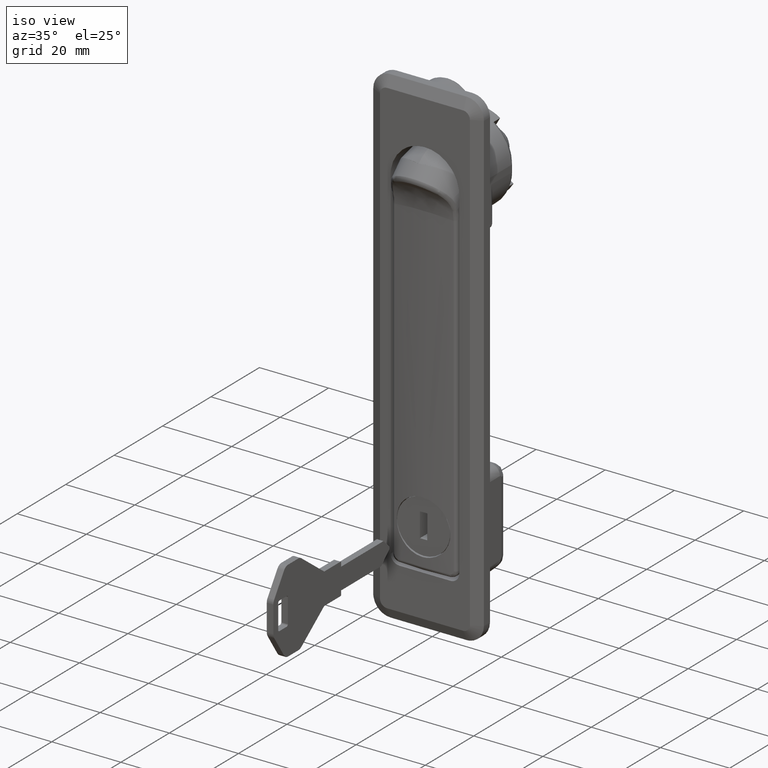
[diagram: clean part render]
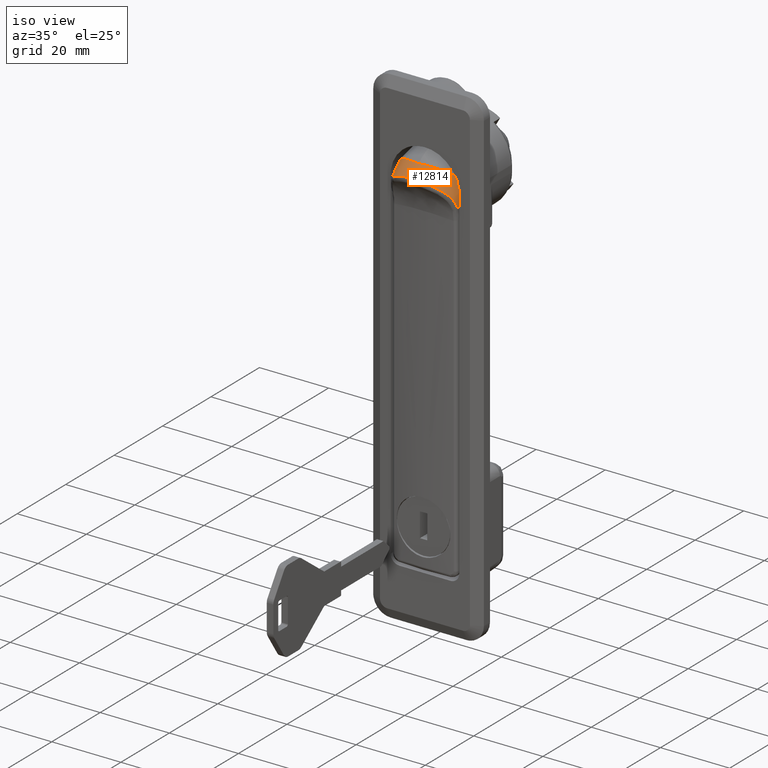
[diagram: same view with one face highlighted and labeled with its STEP entity id]
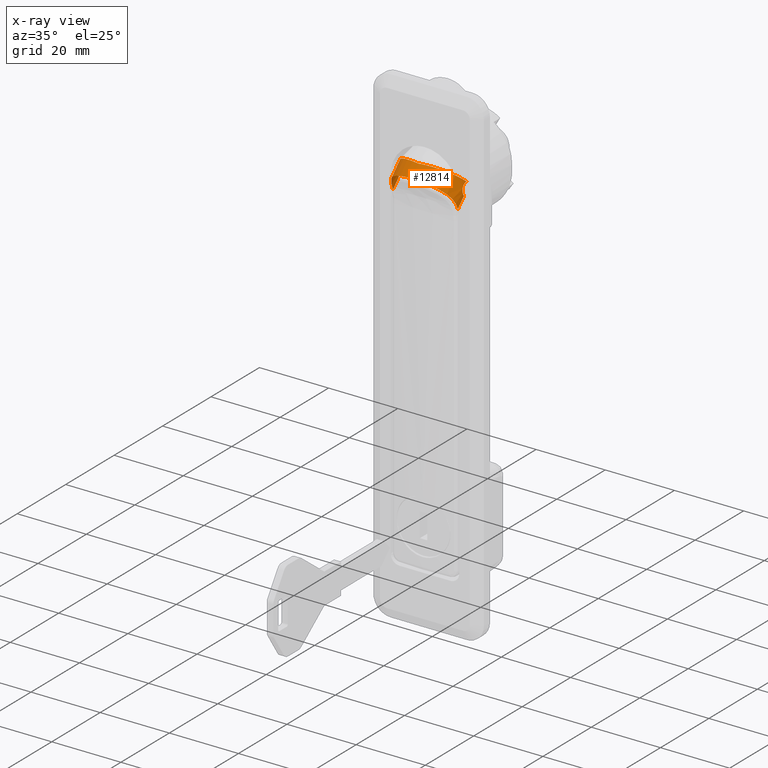
[diagram: x-ray of the same camera — body ghosted, the highlighted face saturated]
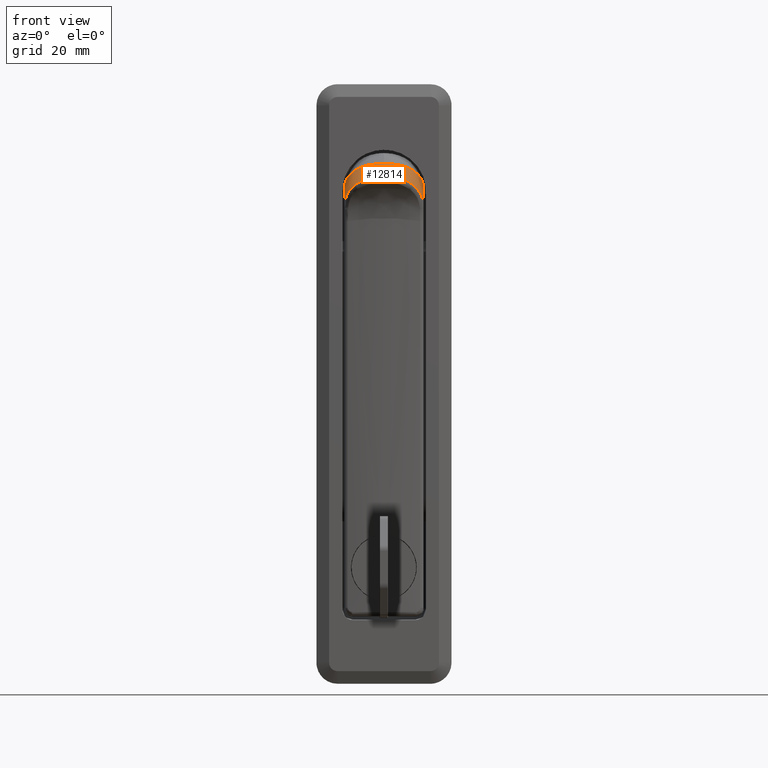
[diagram: same view with one face highlighted and labeled with its STEP entity id]
A machine part, iso view. The second image highlights one B-rep face of the part: STEP entity #12814.
The next image is the same camera in x-ray: the body ghosted, the highlighted face saturated — about 0% of this face is hidden behind the body in this view.
A second angle (front view) of the same face is appended — the face is thin or edge-on in the first view.
In plain terms, the highlighted face is a freeform B-spline surface patch.
Its self-contained STEP definition (entity closure, byte-faithful):
#9063=CARTESIAN_POINT('',(-0.664905069877614,-9.376354503641515,-0.722591661708921));
#9064=VERTEX_POINT('',#9063);
#9065=CARTESIAN_POINT('',(-0.310673836605661,-9.400000000000000,-1.310673322912942));
#9066=VERTEX_POINT('',#9065);
#9067=CARTESIAN_POINT('',(-0.664905069877614,-9.376354503641515,-0.722591661708921));
#9068=CARTESIAN_POINT('',(-0.645942124942898,-9.379766852793425,-0.771536736301744));
#9069=CARTESIAN_POINT('',(-0.625122447375428,-9.382854544176338,-0.819542302223441));
#9070=CARTESIAN_POINT('',(-0.564233427103774,-9.390206037574412,-0.946185221120532));
#9071=CARTESIAN_POINT('',(-0.520789075415055,-9.393813593031632,-1.023118283588885));
#9072=CARTESIAN_POINT('',(-0.423307784756180,-9.398718290300213,-1.171648583926567));
#9073=CARTESIAN_POINT('',(-0.368887381810407,-9.400000010189537,-1.243576316004407));
#9074=CARTESIAN_POINT('',(-0.310673836605661,-9.400000000000000,-1.310673322912942));
#9075=B_SPLINE_CURVE_WITH_KNOTS('',3,(#9067,#9068,#9069,#9070,#9071,#9072,#9073,#9074),.UNSPECIFIED.,.F.,.U.,(4,2,2,4),(0.838008100910213,0.875000000000000,0.937500000000000,1.0),.UNSPECIFIED.);
#9076=EDGE_CURVE('',#9064,#9066,#9075,.T.);
#9156=CARTESIAN_POINT('',(0.885372308754790,-9.283131247923251,1.975097318083755));
#9157=VERTEX_POINT('',#9156);
#9167=CARTESIAN_POINT('',(-0.655387709571665,-9.245271919890524,0.746681126997140));
#9168=VERTEX_POINT('',#9167);
#9169=CARTESIAN_POINT('',(0.885372308754790,-9.283131247923251,1.975097318083755));
#9170=CARTESIAN_POINT('',(0.841564389423130,-9.278985931843092,1.968118844982116));
#9171=CARTESIAN_POINT('',(0.797637018120516,-9.274885825124972,1.959612951914272));
#9172=CARTESIAN_POINT('',(0.710907144871185,-9.266964381062168,1.939785341946444));
#9173=CARTESIAN_POINT('',(0.668074696739454,-9.263139635524508,1.928472702586916));
#9174=CARTESIAN_POINT('',(0.541135724457526,-9.252147641737210,1.890424098664822));
#9175=CARTESIAN_POINT('',(0.458580601650463,-9.245462711804704,1.859595388735296));
#9176=CARTESIAN_POINT('',(0.337829929235144,-9.236687368748234,1.805162833194881));
#9177=CARTESIAN_POINT('',(0.298095125516258,-9.233970858317521,1.785649234877498));
#9178=CARTESIAN_POINT('',(0.219673971840217,-9.229003426647733,1.743828155681627));
#9179=CARTESIAN_POINT('',(0.180848383952481,-9.226745534631219,1.721431557366052));
#9180=CARTESIAN_POINT('',(0.067083286607653,-9.220800046179924,1.650600831716639));
#9181=CARTESIAN_POINT('',(-0.076790277342537,-9.215099617850626,1.546985867057820));
#9182=CARTESIAN_POINT('',(-0.205544090569972,-9.214040288314759,1.425610099263944));
#9183=CARTESIAN_POINT('',(-0.296322645592610,-9.215045287294867,1.327780110911370));
#9184=CARTESIAN_POINT('',(-0.325705721338044,-9.215683436042937,1.293918772510535));
#9185=CARTESIAN_POINT('',(-0.382034232152910,-9.217552347247429,1.224406638192212));
#9186=CARTESIAN_POINT('',(-0.408880084577593,-9.218777246734359,1.188896461019365));
#9187=CARTESIAN_POINT('',(-0.485563892118790,-9.223274078827021,1.080160122992520));
#9188=CARTESIAN_POINT('',(-0.531564639293947,-9.227368395557017,1.004737836365440));
#9189=CARTESIAN_POINT('',(-0.592971607546995,-9.234958344150485,0.887248019225841));
#9190=CARTESIAN_POINT('',(-0.612170723166521,-9.237729709918867,0.847356236964131));
#9191=CARTESIAN_POINT('',(-0.638819986897969,-9.242187033688001,0.786901538329378));
#9192=CARTESIAN_POINT('',(-0.647263526218860,-9.243704793548824,0.766868609624563));
#9193=CARTESIAN_POINT('',(-0.655387709571665,-9.245271919890524,0.746681126997140));
#9194=B_SPLINE_CURVE_WITH_KNOTS('',3,(#9169,#9170,#9171,#9172,#9173,#9174,#9175,#9176,#9177,#9178,#9179,#9180,#9181,#9182,#9183,#9184,#9185,#9186,#9187,#9188,#9189,#9190,#9191,#9192,#9193),.UNSPECIFIED.,.F.,.U.,(4,2,2,2,2,2,1,2,2,2,2,2,4),(0.0,0.031250000000000,0.062500000000000,0.125000000000001,0.156250000000001,0.187500000000001,0.250000000000001,0.312500000000001,0.343750000000001,0.375000000000001,0.437500000000001,0.468750000000001,0.483995765298623),.UNSPECIFIED.);
#9195=EDGE_CURVE('',#9157,#9168,#9194,.T.);
#9273=CARTESIAN_POINT('',(-0.655387709571665,-9.245271919890524,0.746681126997140));
#9274=CARTESIAN_POINT('',(-0.663916013995715,-9.246916989756064,0.725489329577043));
#9275=CARTESIAN_POINT('',(-0.672092396145685,-9.248616460184740,0.704127217836031));
#9276=CARTESIAN_POINT('',(-0.740777392223804,-9.263998950619948,0.514983221617568));
#9277=CARTESIAN_POINT('',(-0.778341870258879,-9.280280711310235,0.342882017094426));
#9278=CARTESIAN_POINT('',(-0.796758494948594,-9.301600680528365,0.122133338337976));
#9279=CARTESIAN_POINT('',(-0.798991144961187,-9.305927512079455,0.077548391654814));
#9280=CARTESIAN_POINT('',(-0.800461691947925,-9.314544336584925,-0.011467697026337));
#9281=CARTESIAN_POINT('',(-0.799709099083838,-9.318821941358928,-0.055772895299309));
#9282=CARTESIAN_POINT('',(-0.793091794748529,-9.331472180988568,-0.188102484320425));
#9283=CARTESIAN_POINT('',(-0.782886757668875,-9.339662326264994,-0.275543515134647));
#9284=CARTESIAN_POINT('',(-0.758939501997835,-9.351231981116303,-0.405575690714153));
#9285=CARTESIAN_POINT('',(-0.749512296594174,-9.354969324853622,-0.448730847567124));
#9286=CARTESIAN_POINT('',(-0.727717213512792,-9.362145881947003,-0.534661693492656));
#9287=CARTESIAN_POINT('',(-0.715314547847980,-9.365593132584223,-0.577542589968527));
#9288=CARTESIAN_POINT('',(-0.690174726777859,-9.371494126895856,-0.654644001566052));
#9289=CARTESIAN_POINT('',(-0.677981328487898,-9.374001501187280,-0.688841195923841));
#9290=CARTESIAN_POINT('',(-0.664905069877614,-9.376354503641515,-0.722591661708921));
#9291=B_SPLINE_CURVE_WITH_KNOTS('',3,(#9273,#9274,#9275,#9276,#9277,#9278,#9279,#9280,#9281,#9282,#9283,#9284,#9285,#9286,#9287,#9288,#9289,#9290),.UNSPECIFIED.,.F.,.U.,(4,2,2,2,2,2,2,2,4),(0.483995765298623,0.500000000000001,0.625000000000001,0.656250000000001,0.687500000000001,0.750000000000001,0.781250000000001,0.812500000000001,0.838008100910213),.UNSPECIFIED.);
#9292=EDGE_CURVE('',#9168,#9064,#9291,.T.);
#9328=CARTESIAN_POINT('',(-0.794456649193368,9.327738834868322,-0.149306174356812));
#9329=VERTEX_POINT('',#9328);
#9330=CARTESIAN_POINT('',(0.130742841321800,9.224134473947665,1.690174412107750));
#9331=VERTEX_POINT('',#9330);
#9332=CARTESIAN_POINT('',(-0.794456649193368,9.327738834868322,-0.149306174356812));
#9333=CARTESIAN_POINT('',(-0.802306057155994,9.317831752670825,-0.044789211058439));
#9334=CARTESIAN_POINT('',(-0.801863845779877,9.307574587239660,0.060235566489128));
#9335=CARTESIAN_POINT('',(-0.789393946155394,9.293094361117131,0.210162093402089));
#9336=CARTESIAN_POINT('',(-0.784200012647902,9.288828525128633,0.254547960851179));
#9337=CARTESIAN_POINT('',(-0.770974058246647,9.280506317139061,0.342217369030025));
#9338=CARTESIAN_POINT('',(-0.762930946850184,9.276434211551353,0.385662914353723));
#9339=CARTESIAN_POINT('',(-0.734579411499586,9.264568206251081,0.514858234116870));
#9340=CARTESIAN_POINT('',(-0.710067567185917,9.257124408883556,0.599471886167315));
#9341=CARTESIAN_POINT('',(-0.664809873028485,9.246986359231274,0.724125488354307));
#9342=CARTESIAN_POINT('',(-0.648304328213650,9.243778274150420,0.765297582706353));
#9343=CARTESIAN_POINT('',(-0.612382486748644,9.237760684659072,0.846868593903511));
#9344=CARTESIAN_POINT('',(-0.592934018836503,9.234950860252177,0.887299949953335));
#9345=CARTESIAN_POINT('',(-0.531092375269293,9.227313645952780,1.005575138803586));
#9346=CARTESIAN_POINT('',(-0.438829296778373,9.219146117298026,1.156517630803619));
#9347=CARTESIAN_POINT('',(-0.327367660942839,9.215395926363250,1.294251310383463));
#9348=CARTESIAN_POINT('',(-0.236340639182964,9.214375541556816,1.392442545838222));
#9349=CARTESIAN_POINT('',(-0.204670638129108,9.214336899870432,1.424384361293712));
#9350=CARTESIAN_POINT('',(-0.139779590855932,9.214863239589889,1.485586005626125));
#9351=CARTESIAN_POINT('',(-0.106459691274055,9.215425569116475,1.514963144620467));
#9352=CARTESIAN_POINT('',(-0.007660340479999,9.217886484252588,1.596422706198648));
#9353=CARTESIAN_POINT('',(0.060015321927438,9.220529588487095,1.645431910311359));
#9354=CARTESIAN_POINT('',(0.130742841321800,9.224134473947665,1.690174412107750));
#9355=B_SPLINE_CURVE_WITH_KNOTS('',3,(#9332,#9333,#9334,#9335,#9336,#9337,#9338,#9339,#9340,#9341,#9342,#9343,#9344,#9345,#9346,#9347,#9348,#9349,#9350,#9351,#9352,#9353,#9354),.UNSPECIFIED.,.F.,.U.,(4,2,2,2,2,2,2,1,2,2,2,4),(0.300614133556624,0.375000000000000,0.406250000000000,0.437500000000000,0.500000000000000,0.531250000000000,0.562500000000000,0.625000000000000,0.687500000000000,0.718750000000000,0.750000000000000,0.809089019606305),.UNSPECIFIED.);
#9356=EDGE_CURVE('',#9329,#9331,#9355,.T.);
#9416=CARTESIAN_POINT('',(0.885372308754777,9.283131247923251,1.975097318083775));
#9417=VERTEX_POINT('',#9416);
#9418=CARTESIAN_POINT('',(0.130742841321800,9.224134473947665,1.690174412107750));
#9419=CARTESIAN_POINT('',(0.134825686465715,9.224342560809951,1.692757316097243));
#9420=CARTESIAN_POINT('',(0.138918756602343,9.224553852638966,1.695325914492086));
#9421=CARTESIAN_POINT('',(0.180614189496336,9.226733340778749,1.721282488425721));
#9422=CARTESIAN_POINT('',(0.219062752033560,9.228966109209837,1.743487512674822));
#9423=CARTESIAN_POINT('',(0.297707373565801,9.233944334204308,1.785456414361185));
#9424=CARTESIAN_POINT('',(0.337993762258713,9.236697637154771,1.805249447612602));
#9425=CARTESIAN_POINT('',(0.540864789791281,9.251447998709301,1.896635422750524));
#9426=CARTESIAN_POINT('',(0.709761932590478,9.266514074322892,1.947123057420558));
#9427=CARTESIAN_POINT('',(0.885372308754778,9.283131247923244,1.975097318083775));
#9428=B_SPLINE_CURVE_WITH_KNOTS('',3,(#9418,#9419,#9420,#9421,#9422,#9423,#9424,#9425,#9426,#9427),.UNSPECIFIED.,.F.,.U.,(4,2,2,2,4),(0.809089019606305,0.812500000000000,0.843750000000000,0.875000000000000,1.0),.UNSPECIFIED.);
#9429=EDGE_CURVE('',#9331,#9417,#9428,.T.);
#9508=CARTESIAN_POINT('',(-0.310673836605494,9.400000000000000,-1.310673322912820));
#9509=VERTEX_POINT('',#9508);
#9523=CARTESIAN_POINT('',(-0.310673836605494,9.400000000000000,-1.310673322912820));
#9524=CARTESIAN_POINT('',(-0.368609926649023,9.399999693594747,-1.243893530571919));
#9525=CARTESIAN_POINT('',(-0.422192902885963,9.398758471941148,-1.173226440421236));
#9526=CARTESIAN_POINT('',(-0.495822371365832,9.395075587801694,-1.061202992342802));
#9527=CARTESIAN_POINT('',(-0.519206429539426,9.393542557522949,-1.022875229836433));
#9528=CARTESIAN_POINT('',(-0.563006145073713,9.389945390651000,-0.945380063437708));
#9529=CARTESIAN_POINT('',(-0.583519432913137,9.387877094924113,-0.906069666305517));
#9530=CARTESIAN_POINT('',(-0.640979627621096,9.380929924792694,-0.786479192343689));
#9531=CARTESIAN_POINT('',(-0.673864705862928,9.375308813940620,-0.704547296634957));
#9532=CARTESIAN_POINT('',(-0.715047822267933,9.365650543039184,-0.578320349192362));
#9533=CARTESIAN_POINT('',(-0.727413666395379,9.362226618518056,-0.535687993558233));
#9534=CARTESIAN_POINT('',(-0.749363695471502,9.355013379777514,-0.449282789425717));
#9535=CARTESIAN_POINT('',(-0.758914618554669,9.351229757150932,-0.405589110651416));
#9536=CARTESIAN_POINT('',(-0.779942147290471,9.341059612536526,-0.291303743704506));
#9537=CARTESIAN_POINT('',(-0.789118826609629,9.334480264456563,-0.220422513078259));
#9538=CARTESIAN_POINT('',(-0.794456649193368,9.327738834868322,-0.149306174356812));
#9539=B_SPLINE_CURVE_WITH_KNOTS('',3,(#9523,#9524,#9525,#9526,#9527,#9528,#9529,#9530,#9531,#9532,#9533,#9534,#9535,#9536,#9537,#9538),.UNSPECIFIED.,.F.,.U.,(4,2,2,2,2,2,2,4),(0.0,0.062500000000000,0.093750000000000,0.125000000000000,0.187500000000000,0.218750000000000,0.250000000000000,0.300614133556624),.UNSPECIFIED.);
#9540=EDGE_CURVE('',#9509,#9329,#9539,.T.);
#9625=CARTESIAN_POINT('',(-5.646803837727238,0.0,6.646803905426230));
#9626=VERTEX_POINT('',#9625);
#11116=CARTESIAN_POINT('',(-2.834066197106915,-9.400000000000000,-3.834065683414365));
#11117=VERTEX_POINT('',#11116);
#11429=CARTESIAN_POINT('',(-6.453373264388840,-6.751277101391210,1.796519951409085));
#11430=VERTEX_POINT('',#11429);
#11474=CARTESIAN_POINT('',(-6.453373264388840,-6.751277101391210,1.796519951409085));
#11475=CARTESIAN_POINT('',(-6.294752844659851,-6.968602092544161,1.637899667146557));
#11476=CARTESIAN_POINT('',(-6.132381861764475,-7.173493951356687,1.469617091237436));
#11477=CARTESIAN_POINT('',(-5.802285308047341,-7.558859115312590,1.112240197070407));
#11478=CARTESIAN_POINT('',(-5.634553478591784,-7.739331750547850,0.923150881758858));
#11479=CARTESIAN_POINT('',(-5.380520498428670,-7.991537153649437,0.622266437442440));
#11480=CARTESIAN_POINT('',(-5.295396740822730,-8.072532685929266,0.519023387919417));
#11481=CARTESIAN_POINT('',(-5.126349992782139,-8.226748063699620,0.308641990492501));
#11482=CARTESIAN_POINT('',(-5.042213333930143,-8.300186796970587,0.201255766708597));
#11483=CARTESIAN_POINT('',(-4.791402828097438,-8.509720041906290,-0.127681230318048));
#11484=CARTESIAN_POINT('',(-4.626321929426599,-8.635051935697957,-0.355995078243348));
#11485=CARTESIAN_POINT('',(-4.302847278631632,-8.857663852381617,-0.832034117950367));
#11486=CARTESIAN_POINT('',(-4.144446287157587,-8.954941750055243,-1.079755329841664));
#11487=CARTESIAN_POINT('',(-3.952321815187025,-9.059024203323814,-1.402724076357191));
#11488=CARTESIAN_POINT('',(-3.914161326077794,-9.078976639968301,-1.468042117360601));
#11489=CARTESIAN_POINT('',(-3.838947162209296,-9.116893771886714,-1.599214619066609));
#11490=CARTESIAN_POINT('',(-3.727615885635013,-9.170883447702696,-1.797058280136254));
#11491=CARTESIAN_POINT('',(-3.620867757988286,-9.216420141691575,-1.998180139921512));
#11492=CARTESIAN_POINT('',(-3.275756982482454,-9.350224643230202,-2.676004018198633));
#11493=CARTESIAN_POINT('',(-3.033750057008501,-9.400000000000002,-3.241863872163433));
#11494=CARTESIAN_POINT('',(-2.834066197106905,-9.400000000000000,-3.834065683414360));
#11495=B_SPLINE_CURVE_WITH_KNOTS('',3,(#11474,#11475,#11476,#11477,#11478,#11479,#11480,#11481,#11482,#11483,#11484,#11485,#11486,#11487,#11488,#11489,#11490,#11491,#11492,#11493,#11494),.UNSPECIFIED.,.F.,.U.,(4,2,2,2,2,2,2,2,1,2,4),(0.0,0.125000000000000,0.250000000000001,0.312500000000000,0.375000000000000,0.500000000000000,0.625000000000000,0.656250000000000,0.687500000000000,0.750000000000000,1.0),.UNSPECIFIED.);
#11496=EDGE_CURVE('',#11430,#11117,#11495,.T.);
#11563=CARTESIAN_POINT('',(-6.453373264388829,6.751277101391230,1.796519951409070));
#11564=VERTEX_POINT('',#11563);
#11598=CARTESIAN_POINT('',(-6.453373264388829,6.751277101391230,1.796519951409070));
#11599=CARTESIAN_POINT('',(-6.614172267100344,6.530967222474506,1.957318850130992));
#11600=CARTESIAN_POINT('',(-6.765741725254634,6.301089315617494,2.108888210264489));
#11601=CARTESIAN_POINT('',(-7.051072149063533,5.822871902552064,2.394218449548646));
#11602=CARTESIAN_POINT('',(-7.184831238627821,5.574530451449784,2.527977452610201));
#11603=CARTESIAN_POINT('',(-7.434635460000802,5.059483951595544,2.777781512433430));
#11604=CARTESIAN_POINT('',(-7.550681434609839,4.792779776552702,2.893827411994900));
#11605=CARTESIAN_POINT('',(-7.684394442533615,4.447639051821269,3.027540333445743));
#11606=CARTESIAN_POINT('',(-7.710568453545792,4.378021463869287,3.053714327531046));
#11607=CARTESIAN_POINT('',(-7.761766783831422,4.237594432548121,3.104912624706436));
#11608=CARTESIAN_POINT('',(-7.786813985617158,4.166712869115599,3.129959810294010));
#11609=CARTESIAN_POINT('',(-7.859818669243197,3.953428056704742,3.202964446707521));
#11610=CARTESIAN_POINT('',(-7.905763281796915,3.810066293239924,3.248909029548610));
#11611=CARTESIAN_POINT('',(-8.035581777145007,3.376534221482813,3.378727440942368));
#11612=CARTESIAN_POINT('',(-8.187338415205746,2.789317052634019,3.530483980861257));
#11613=CARTESIAN_POINT('',(-8.297129176281525,2.184053592434278,3.640274670934760));
#11614=CARTESIAN_POINT('',(-8.363524657440234,1.723248167308971,3.706670109155143));
#11615=CARTESIAN_POINT('',(-8.382993661942210,1.568501284053461,3.726139101066412));
#11616=CARTESIAN_POINT('',(-8.416509085101803,1.256675681034933,3.759654502551397));
#11617=CARTESIAN_POINT('',(-8.430565138745585,1.099280018306572,3.773710547105054));
#11618=CARTESIAN_POINT('',(-8.464096515654939,0.628670815120508,3.807241902329481));
#11619=CARTESIAN_POINT('',(-8.475155821665020,0.315605513529532,3.818301201187452));
#11620=CARTESIAN_POINT('',(-8.475306030571231,-0.309213850291335,3.818451409996527));
#11621=CARTESIAN_POINT('',(-8.464395510656775,-0.620967827597199,3.807540897137960));
#11622=CARTESIAN_POINT('',(-8.420555116165680,-1.243161501676608,3.763700530998686));
#11623=CARTESIAN_POINT('',(-8.387627169612749,-1.553601313529096,3.730772605740441));
#11624=CARTESIAN_POINT('',(-8.332254355429356,-1.940802746816247,3.675399827366945));
#11625=CARTESIAN_POINT('',(-8.320455361415473,-2.018263140007429,3.663600840983536));
#11626=CARTESIAN_POINT('',(-8.295560071239288,-2.172240781127699,3.638705566907271));
#11627=CARTESIAN_POINT('',(-8.256232048320237,-2.402087423018343,3.599377569421867));
#11628=CARTESIAN_POINT('',(-8.211017202685310,-2.628613213781736,3.554162753027626));
#11629=CARTESIAN_POINT('',(-8.112861659791228,-3.077306518473372,3.456007273611270));
#11630=CARTESIAN_POINT('',(-7.961422480905977,-3.663963143020563,3.304568192662565));
#11631=CARTESIAN_POINT('',(-7.769219925525243,-4.227624492982627,3.112365761580269));
#11632=CARTESIAN_POINT('',(-7.609456444910901,-4.641563771725068,2.952602384285842));
#11633=CARTESIAN_POINT('',(-7.553566374410272,-4.778139353316803,2.896712349929625));
#11634=CARTESIAN_POINT('',(-7.436574625875088,-5.048011175780423,2.779720677053645));
#11635=CARTESIAN_POINT('',(-7.375855665960255,-5.180431968285435,2.719001756406096));
#11636=CARTESIAN_POINT('',(-7.187129489354111,-5.570262080840673,2.530275701850198));
#11637=CARTESIAN_POINT('',(-6.918008282517051,-6.070252191323259,2.261154669055287));
#11638=CARTESIAN_POINT('',(-6.614172267100355,-6.530967222474483,1.957318850131008));
#11639=CARTESIAN_POINT('',(-6.453373264388840,-6.751277101391210,1.796519951409085));
#11640=B_SPLINE_CURVE_WITH_KNOTS('',3,(#11598,#11599,#11600,#11601,#11602,#11603,#11604,#11605,#11606,#11607,#11608,#11609,#11610,#11611,#11612,#11613,#11614,#11615,#11616,#11617,#11618,#11619,#11620,#11621,#11622,#11623,#11624,#11625,#11626,#11627,#11628,#11629,#11630,#11631,#11632,#11633,#11634,#11635,#11636,#11637,#11638,#11639),.UNSPECIFIED.,.F.,.U.,(4,2,2,2,2,2,2,1,2,2,2,2,2,2,2,1,2,1,2,2,2,1,4),(0.0,0.062500000000000,0.125000000000000,0.187500000000000,0.203125000000000,0.218750000000000,0.250000000000000,0.312500000000000,0.375000000000000,0.406250000000000,0.437500000000000,0.500000000000000,0.562500000000000,0.625000000000001,0.640625000000001,0.656250000000001,0.687500000000001,0.750000000000000,0.812500000000000,0.843750000000000,0.875000000000000,0.937500000000000,1.0),.UNSPECIFIED.);
#11641=EDGE_CURVE('',#11564,#11430,#11640,.T.);
#11696=CARTESIAN_POINT('',(-2.834066197106915,9.400000000000000,-3.834065683414365));
#11697=VERTEX_POINT('',#11696);
#11816=CARTESIAN_POINT('',(-2.834066197106915,9.400000000000000,-3.834065683414365));
#11817=CARTESIAN_POINT('',(-2.933958021171256,9.400000000000002,-3.537816806969300));
#11818=CARTESIAN_POINT('',(-3.044797612688561,9.387495404944882,-3.247275534905703));
#11819=CARTESIAN_POINT('',(-3.226068645347723,9.348350999377935,-2.819578766218273));
#11820=CARTESIAN_POINT('',(-3.288997212026963,9.331901938896484,-2.678367204773091));
#11821=CARTESIAN_POINT('',(-3.386994207285138,9.301888412453545,-2.468537891522090));
#11822=CARTESIAN_POINT('',(-3.420260704947474,9.290993631697400,-2.398926209899918));
#11823=CARTESIAN_POINT('',(-3.487971408671720,9.267379995336135,-2.260359520266122));
#11824=CARTESIAN_POINT('',(-3.522463800722198,9.254641842404226,-2.191311163378347));
#11825=CARTESIAN_POINT('',(-3.836875629712285,9.132064682560051,-1.575169370763031));
#11826=CARTESIAN_POINT('',(-4.143603985473283,8.967508758645458,-1.066064912491452));
#11827=CARTESIAN_POINT('',(-4.548137819497137,8.688792294268961,-0.471135371093642));
#11828=CARTESIAN_POINT('',(-4.630113308869318,8.629375563013902,-0.354238530240672));
#11829=CARTESIAN_POINT('',(-4.795916329668192,8.503008720595220,-0.124515647634371));
#11830=CARTESIAN_POINT('',(-4.879854735186804,8.435965806848550,-0.011544986024777));
#11831=CARTESIAN_POINT('',(-5.133318732568287,8.223778982897031,0.320462407071302));
#11832=CARTESIAN_POINT('',(-5.302241573083888,8.069509112949126,0.529726513606805));
#11833=CARTESIAN_POINT('',(-5.637691102406449,7.735953120509355,0.926686067759480));
#11834=CARTESIAN_POINT('',(-5.804224675349034,7.556666108844824,1.114374647212908));
#11835=CARTESIAN_POINT('',(-6.132750754277444,7.172991721176397,1.469981418186382));
#11836=CARTESIAN_POINT('',(-6.294749509868591,6.968606661524501,1.637896332357227));
#11837=CARTESIAN_POINT('',(-6.453373264388829,6.751277101391230,1.796519951409070));
#11838=B_SPLINE_CURVE_WITH_KNOTS('',3,(#11816,#11817,#11818,#11819,#11820,#11821,#11822,#11823,#11824,#11825,#11826,#11827,#11828,#11829,#11830,#11831,#11832,#11833,#11834,#11835,#11836,#11837),.UNSPECIFIED.,.F.,.U.,(4,2,2,2,2,2,2,2,2,2,4),(0.0,0.125000000000001,0.187500000000001,0.218750000000001,0.250000000000001,0.500000000000001,0.562500000000001,0.625000000000001,0.750000000000000,0.875000000000000,1.0),.UNSPECIFIED.);
#11839=EDGE_CURVE('',#11697,#11564,#11838,.T.);
#12327=CARTESIAN_POINT('',(-5.646803837727238,0.0,6.646803905426230));
#12328=CARTESIAN_POINT('',(-5.645663220334402,0.017354913282266,6.647944779665391));
#12329=CARTESIAN_POINT('',(-5.644608864106690,0.034703501712666,6.648931219448603));
#12330=CARTESIAN_POINT('',(-5.641566122316177,0.069429372898760,6.651701938745102));
#12331=CARTESIAN_POINT('',(-5.640115150205620,0.086803813850533,6.652948729399248));
#12332=CARTESIAN_POINT('',(-5.635647028136274,0.138911501160884,6.656600135656775));
#12333=CARTESIAN_POINT('',(-5.632577483159547,0.173638762229327,6.658852968965078));
#12334=CARTESIAN_POINT('',(-5.622963457745581,0.277766498898015,6.665202246640051));
#12335=CARTESIAN_POINT('',(-5.616036752991241,0.347116486206866,6.668866400350600));
#12336=CARTESIAN_POINT('',(-5.593644437936003,0.554951565734087,6.678225911585215));
#12337=CARTESIAN_POINT('',(-5.576578123585958,0.693223526079406,6.682278387474240));
#12338=CARTESIAN_POINT('',(-5.518933810047604,1.107179882502282,6.687952245215940));
#12339=CARTESIAN_POINT('',(-5.471928426138439,1.382007261909058,6.683097326335505));
#12340=CARTESIAN_POINT('',(-5.388324622635189,1.792500076457178,6.662826462789889));
#12341=CARTESIAN_POINT('',(-5.358318282332785,1.928785914571952,6.653909678325828));
#12342=CARTESIAN_POINT('',(-5.294213231495569,2.199478452300541,6.631849420985055));
#12343=CARTESIAN_POINT('',(-5.260090020110058,2.334007242018574,6.618700248318294));
#12344=CARTESIAN_POINT('',(-5.151507317547311,2.735146228971407,6.572940958047710));
#12345=CARTESIAN_POINT('',(-5.070847033612250,2.999313851242140,6.534031298553988));
#12346=CARTESIAN_POINT('',(-4.892687725311442,3.521045135211393,6.439352128521254));
#12347=CARTESIAN_POINT('',(-4.796052948427020,3.776038005061844,6.384037038284155));
#12348=CARTESIAN_POINT('',(-4.588456412592339,4.273492724265073,6.258316888378142));
#12349=CARTESIAN_POINT('',(-4.366398579879003,4.758802545610584,6.117433821983058));
#12350=CARTESIAN_POINT('',(-4.115499515724026,5.220044021697979,5.946779194492735));
#12351=CARTESIAN_POINT('',(-3.916292303377257,5.556825297208531,5.807574805492899));
#12352=CARTESIAN_POINT('',(-3.848048488138165,5.667558596939027,5.759301793168542));
#12353=CARTESIAN_POINT('',(-3.707808898472016,5.885923145322791,5.658971609350146));
#12354=CARTESIAN_POINT('',(-3.635690625098254,5.993728462088660,5.606824761742598));
#12355=CARTESIAN_POINT('',(-3.266947567825698,6.522753556341221,5.337538095269290));
#12356=CARTESIAN_POINT('',(-2.948755371562760,6.910579796831573,5.096942612244620));
#12357=CARTESIAN_POINT('',(-2.521624714155952,7.351267538074291,4.765491430346473));
#12358=CARTESIAN_POINT('',(-2.434536229923872,7.437351998614011,4.697510923110145));
#12359=CARTESIAN_POINT('',(-2.258423446175701,7.604017170587169,4.559277355058659));
#12360=CARTESIAN_POINT('',(-2.169412015717863,7.684605530116887,4.489036486786294));
#12361=CARTESIAN_POINT('',(-1.899542972041759,7.918277445782043,4.275021235742798));
#12362=CARTESIAN_POINT('',(-1.715855879465115,8.063283219332831,4.127960605181650));
#12363=CARTESIAN_POINT('',(-1.153516982472376,8.466505040967503,3.674016728129636));
#12364=CARTESIAN_POINT('',(-0.763678164695658,8.693175305335210,3.354469215360143));
#12365=CARTESIAN_POINT('',(-0.256546953547720,8.921899801057352,2.933684365250040));
#12366=CARTESIAN_POINT('',(-0.154069917663866,8.964900479881830,2.848407687771740));
#12367=CARTESIAN_POINT('',(0.051402148410499,9.044724382453881,2.676954453098054));
#12368=CARTESIAN_POINT('',(0.154580781889151,9.081635497838892,2.590625931510116));
#12369=CARTESIAN_POINT('',(0.465456595609045,9.183398776707046,2.329861288389199));
#12370=CARTESIAN_POINT('',(0.674491034987673,9.239298579981323,2.153649589553135));
#12371=CARTESIAN_POINT('',(0.885372308754776,9.283131247923251,1.975097318083780));
#12372=B_SPLINE_CURVE_WITH_KNOTS('',3,(#12327,#12328,#12329,#12330,#12331,#12332,#12333,#12334,#12335,#12336,#12337,#12338,#12339,#12340,#12341,#12342,#12343,#12344,#12345,#12346,#12347,#12348,#12349,#12350,#12351,#12352,#12353,#12354,#12355,#12356,#12357,#12358,#12359,#12360,#12361,#12362,#12363,#12364,#12365,#12366,#12367,#12368,#12369,#12370,#12371),.UNSPECIFIED.,.F.,.U.,(4,2,2,2,2,2,2,2,2,2,2,1,2,2,2,2,2,2,2,2,2,2,4),(0.0,0.003906250000000,0.007812500000000,0.015625000000000,0.031250000000000,0.062500000000000,0.125000000000000,0.156250000000001,0.187500000000001,0.250000000000001,0.312500000000001,0.375000000000002,0.437500000000002,0.468750000000002,0.500000000000002,0.625000000000002,0.656250000000002,0.687500000000002,0.750000000000002,0.875000000000001,0.906250000000001,0.937500000000000,1.0),.UNSPECIFIED.);
#12373=EDGE_CURVE('',#9626,#9417,#12372,.T.);
#12652=CARTESIAN_POINT('',(0.885372308754788,-9.283131247923251,1.975097318083770));
#12653=CARTESIAN_POINT('',(0.463601183439468,-9.195464129107117,2.332209123793017));
#12654=CARTESIAN_POINT('',(0.050321605589655,-9.060046103337550,2.679044832515004));
#12655=CARTESIAN_POINT('',(-0.456249535752067,-8.831893576279597,3.099389563469986));
#12656=CARTESIAN_POINT('',(-0.557058688722991,-8.783297458151703,3.182793642448053));
#12657=CARTESIAN_POINT('',(-0.757667117264671,-8.680106871923778,3.348243022769289));
#12658=CARTESIAN_POINT('',(-0.856873100790672,-8.625816687839047,3.429798880184861));
#12659=CARTESIAN_POINT('',(-1.151138053994147,-8.455094863482090,3.670892240504009));
#12660=CARTESIAN_POINT('',(-1.342913452034978,-8.330794681701784,3.826914358427724));
#12661=CARTESIAN_POINT('',(-1.905464284082820,-7.927133525873084,4.281002944428398));
#12662=CARTESIAN_POINT('',(-2.263558072853142,-7.617247192243098,4.565203522227190));
#12663=CARTESIAN_POINT('',(-2.689959291008432,-7.177658333798997,4.896125445966756));
#12664=CARTESIAN_POINT('',(-2.774319847631620,-7.086939616132736,4.961197937240622));
#12665=CARTESIAN_POINT('',(-2.940031985314199,-6.901088215272729,5.088182700104110));
#12666=CARTESIAN_POINT('',(-3.021357723793656,-6.806002220933937,5.150077059983908));
#12667=CARTESIAN_POINT('',(-3.260790157469387,-6.514302865490095,5.330971012439736));
#12668=CARTESIAN_POINT('',(-3.414360744965261,-6.311260634654338,5.445190969941556));
#12669=CARTESIAN_POINT('',(-3.635666270328290,-5.993765133421372,5.606807183156579));
#12670=CARTESIAN_POINT('',(-3.707775443397080,-5.885973951793535,5.658947516805314));
#12671=CARTESIAN_POINT('',(-3.848021506417635,-5.667601894963933,5.759282647963136));
#12672=CARTESIAN_POINT('',(-3.916268452596693,-5.556864648534666,5.807558016396945));
#12673=CARTESIAN_POINT('',(-4.115484734111532,-5.220070953132301,5.946769109890680));
#12674=CARTESIAN_POINT('',(-4.366395332673807,-4.758811456745565,6.117431500334753));
#12675=CARTESIAN_POINT('',(-4.588462243304917,-4.273480258373082,6.258320625605791));
#12676=CARTESIAN_POINT('',(-4.796067121913817,-3.776002535599369,6.384045415549766));
#12677=CARTESIAN_POINT('',(-4.892709087508269,-3.520986866242212,6.439364087885704));
#12678=CARTESIAN_POINT('',(-5.070866594916288,-2.999252276648905,6.534041087018977));
#12679=CARTESIAN_POINT('',(-5.151523484094875,-2.735090137888260,6.572948299327243));
#12680=CARTESIAN_POINT('',(-5.296291376950708,-2.200264299161918,6.633955818324814));
#12681=CARTESIAN_POINT('',(-5.360447461429461,-1.929375638172408,6.656067170170651));
#12682=CARTESIAN_POINT('',(-5.471935078128400,-1.381975280152904,6.683099040163035));
#12683=CARTESIAN_POINT('',(-5.518944240590813,-1.107117735497432,6.687953147470801));
#12684=CARTESIAN_POINT('',(-5.576590462799466,-0.693128534087846,6.682276208040599));
#12685=CARTESIAN_POINT('',(-5.593656781896240,-0.554847695027917,6.678222393545737));
#12686=CARTESIAN_POINT('',(-5.616048461784310,-0.347002454108767,6.668860684604123));
#12687=CARTESIAN_POINT('',(-5.622974841285163,-0.277649604999094,6.665195773112143));
#12688=CARTESIAN_POINT('',(-5.632588301752673,-0.173518380228133,6.658845300638168));
#12689=CARTESIAN_POINT('',(-5.635657617095141,-0.138790086230960,6.656592087858280));
#12690=CARTESIAN_POINT('',(-5.640125584703265,-0.086681082920084,6.652939897776324));
#12691=CARTESIAN_POINT('',(-5.641576364887124,-0.069306215852304,6.651692982220954));
#12692=CARTESIAN_POINT('',(-5.644620256073162,-0.034579795040588,6.648920472931408));
#12693=CARTESIAN_POINT('',(-5.645666529755144,-0.017304566403504,6.647941470244642));
#12694=CARTESIAN_POINT('',(-5.646803837727238,0.0,6.646803905426230));
#12695=B_SPLINE_CURVE_WITH_KNOTS('',3,(#12652,#12653,#12654,#12655,#12656,#12657,#12658,#12659,#12660,#12661,#12662,#12663,#12664,#12665,#12666,#12667,#12668,#12669,#12670,#12671,#12672,#12673,#12674,#12675,#12676,#12677,#12678,#12679,#12680,#12681,#12682,#12683,#12684,#12685,#12686,#12687,#12688,#12689,#12690,#12691,#12692,#12693,#12694),.UNSPECIFIED.,.F.,.U.,(4,2,2,2,2,2,2,2,2,2,2,1,2,2,2,2,2,2,2,2,2,4),(0.0,0.125000000000000,0.156250000000000,0.187500000000000,0.250000000000001,0.375000000000001,0.406250000000001,0.437500000000001,0.500000000000001,0.531250000000001,0.562500000000001,0.625000000000001,0.687500000000001,0.750000000000001,0.812500000000000,0.875000000000000,0.937500000000000,0.968750000000000,0.984375000000000,0.992187500000000,0.996093750000000,1.0),.UNSPECIFIED.);
#12696=EDGE_CURVE('',#9157,#9626,#12695,.T.);
#12773=CARTESIAN_POINT('',(2.223335113412052,9.396778854770234,0.875349551110557));
#12774=CARTESIAN_POINT('',(-2.782158365922810,9.396778854770234,-4.130143928224555));
#12775=CARTESIAN_POINT('',(-4.778534379482234,9.656075484723315,7.877219044004489));
#12776=CARTESIAN_POINT('',(-9.784027858817092,9.656075484723317,2.871725564669381));
#12777=CARTESIAN_POINT('',(-4.595183974103654,-0.246063314093961,7.693868638625920));
#12778=CARTESIAN_POINT('',(-9.600677453438514,-0.246063314093960,2.688375159290812));
#12779=CARTESIAN_POINT('',(-4.411833568725080,-10.148202112911237,7.510518233247349));
#12780=CARTESIAN_POINT('',(-9.417327048059939,-10.148202112911237,2.505024753912245));
#12781=CARTESIAN_POINT('',(2.570844286583163,-9.371022937091404,0.527840377939453));
#12782=CARTESIAN_POINT('',(-2.434649192751696,-9.371022937091404,-4.477653101395652));
#12790=(BOUNDED_SURFACE()B_SPLINE_SURFACE(1,2,((#12773,#12775,#12777,#12779,#12781),(#12774,#12776,#12778,#12780,#12782)),.UNSPECIFIED.,.F.,.F.,.U.)B_SPLINE_SURFACE_WITH_KNOTS((2,2),(3,2,3),(0.0,7.078836764845630),(0.0,16.154234864353029,32.308469728706072),.UNSPECIFIED.)GEOMETRIC_REPRESENTATION_ITEM()RATIONAL_B_SPLINE_SURFACE(((1.0,0.688354575693754,1.0,0.688354575693754,1.0),(1.0,0.688354575693754,1.0,0.688354575693754,1.0)))REPRESENTATION_ITEM('')SURFACE());
#12791=CARTESIAN_POINT('',(-2.834066197106915,9.400000000000000,-3.834065683414365));
#12792=CARTESIAN_POINT('',(-0.310673836605494,9.400000000000000,-1.310673322912820));
#12793=QUASI_UNIFORM_CURVE('',1,(#12791,#12792),.UNSPECIFIED.,.F.,.U.);
#12794=EDGE_CURVE('',#11697,#9509,#12793,.T.);
#12795=ORIENTED_EDGE('',*,*,#12794,.F.);
#12796=ORIENTED_EDGE('',*,*,#11839,.T.);
#12797=ORIENTED_EDGE('',*,*,#11641,.T.);
#12798=ORIENTED_EDGE('',*,*,#11496,.T.);
#12799=CARTESIAN_POINT('',(-0.310673836605661,-9.400000000000000,-1.310673322912942));
#12800=CARTESIAN_POINT('',(-2.834066197106915,-9.400000000000000,-3.834065683414365));
#12801=QUASI_UNIFORM_CURVE('',1,(#12799,#12800),.UNSPECIFIED.,.F.,.U.);
#12802=EDGE_CURVE('',#9066,#11117,#12801,.T.);
#12803=ORIENTED_EDGE('',*,*,#12802,.F.);
#12804=ORIENTED_EDGE('',*,*,#9076,.F.);
#12805=ORIENTED_EDGE('',*,*,#9292,.F.);
#12806=ORIENTED_EDGE('',*,*,#9195,.F.);
#12807=ORIENTED_EDGE('',*,*,#12696,.T.);
#12808=ORIENTED_EDGE('',*,*,#12373,.T.);
#12809=ORIENTED_EDGE('',*,*,#9429,.F.);
#12810=ORIENTED_EDGE('',*,*,#9356,.F.);
#12811=ORIENTED_EDGE('',*,*,#9540,.F.);
#12812=EDGE_LOOP('',(#12795,#12796,#12797,#12798,#12803,#12804,#12805,#12806,#12807,#12808,#12809,#12810,#12811));
#12813=FACE_OUTER_BOUND('',#12812,.T.);
#12814=ADVANCED_FACE('',(#12813),#12790,.T.);